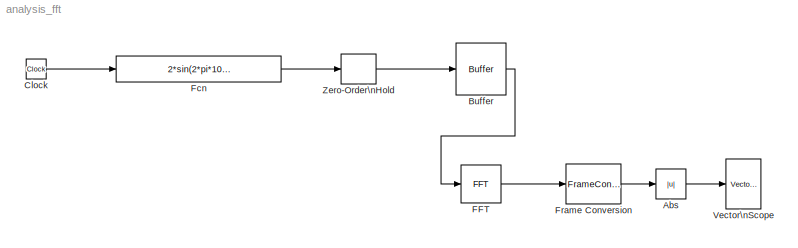
MODEL analysis_fft
KIND model
BLOCK [Abs] Abs
  SID = 7
  SaturateOnIntegerOverflow = off
BLOCK [Buffer] Buffer
  N = 256
  OutputFrames = off
  SID = 4
BLOCK [Clock] Clock
  SID = 1
BLOCK [Reference] FFT  REF=dspxfrm3/FFT
  BitRevOrder = off
  CompMethod = Table lookup
  FFTImplementation = Auto
  FFTLength = 64
  InheritFFTLength = on
  LockScale = off
  Normalize = off
  Ports = [1, 1]
  SID = 5
  SourceBlock = dspxfrm3/FFT
  SourceProductBaseCode = DS
  SourceProductName = DSP System Toolbox
  SourceType = FFT
  TableOpt = NEW
  TableOptActive = Speed
  WrapInput = on
  accumDataTypeStr = Inherit: Inherit via internal rule
  accumFracLength = 30
  accumLastDataTypeStr = Inherit: Inherit via internal rule
  accumMode = Inherit via internal rule
  accumWordLength = 32
  firstCoeffDataTypeStr = Inherit: Same word length as input
  firstCoeffFracLength = 15
  firstCoeffLastDataTypeStr = Inherit: Same word length as input
  firstCoeffMode = Same word length as input
  firstCoeffWordLength = 16
  outputDataTypeStr = Inherit: Inherit via internal rule
  outputFracLength = 15
  outputLastDataTypeStr = Inherit: Inherit via internal rule
  outputMax = []
  outputMin = []
  outputMode = Inherit via internal rule
  outputWordLength = 16
  overflowMode = off
  prodOutputDataTypeStr = Inherit: Inherit via internal rule
  prodOutputFracLength = 30
  prodOutputLastDataTypeStr = Inherit: Inherit via internal rule
  prodOutputMode = Inherit via internal rule
  prodOutputWordLength = 32
  roundingMode = Floor
BLOCK [Fcn] Fcn
  Expr = 2*sin(2*pi*100*u)+cos(2*pi*180*u)
  SID = 2
BLOCK [FrameConversion] Frame Conversion
  InheritSamplingMode = off
  Ports = [1, 1]
  SID = 6
BLOCK [Reference] Vector\nScope  REF=dspsnks4/Vector\nScope
  AxisGrid = on
  AxisLegend = off
  AxisProperties = off
  AxisZoom = off
  DisplayProperties = off
  Domain = Time
  FigPos = get(0,'defaultfigureposition')
  FrameNumber = on
  HorizSpan = 1
  InheritXIncr = on
  LineProperties = off
  Memory = off
  OpenScopeAtSimStart = on
  OpenScopeImmediately = off
  Ports = [1]
  SID = 8
  ScopeProperties = on
  ShowPortLabels = off
  SourceBlock = dspsnks4/Vector\nScope
  SourceProductBaseCode = DS
  SourceProductName = DSP System Toolbox
  SourceType = Vector Scope
  XAxisParamsVer = 6.9
  XIncr = 1
  XLabel = Time
  XLimit = Auto
  XMax = 1
  XMin = 0
  XRange = [0...Fs/2]
  XStart = 0
  XUnits = Hertz
  YLabel = Amplitude
  YMax = 10
  YMin = -10
  YUnits = dB
BLOCK [ZeroOrderHold] Zero-Order\nHold
  SID = 3
  SampleTime = -1
LINE Abs:1 -> Vector\nScope:1
LINE Buffer:1 -> FFT:1
LINE Clock:1 -> Fcn:1
LINE FFT:1 -> Frame Conversion:1
LINE Fcn:1 -> Zero-Order\nHold:1
LINE Frame Conversion:1 -> Abs:1
LINE Zero-Order\nHold:1 -> Buffer:1
